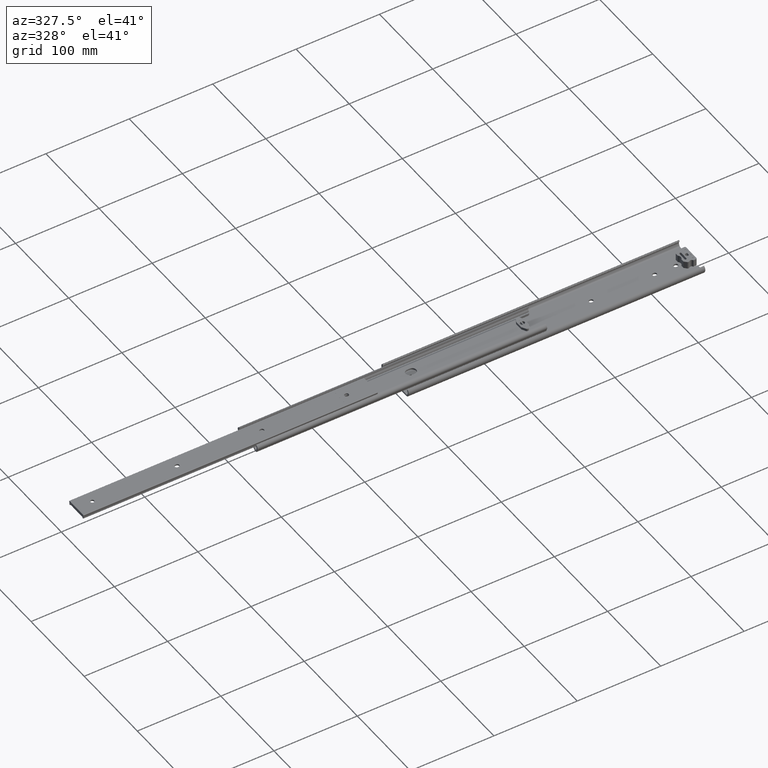
[diagram: clean part render]
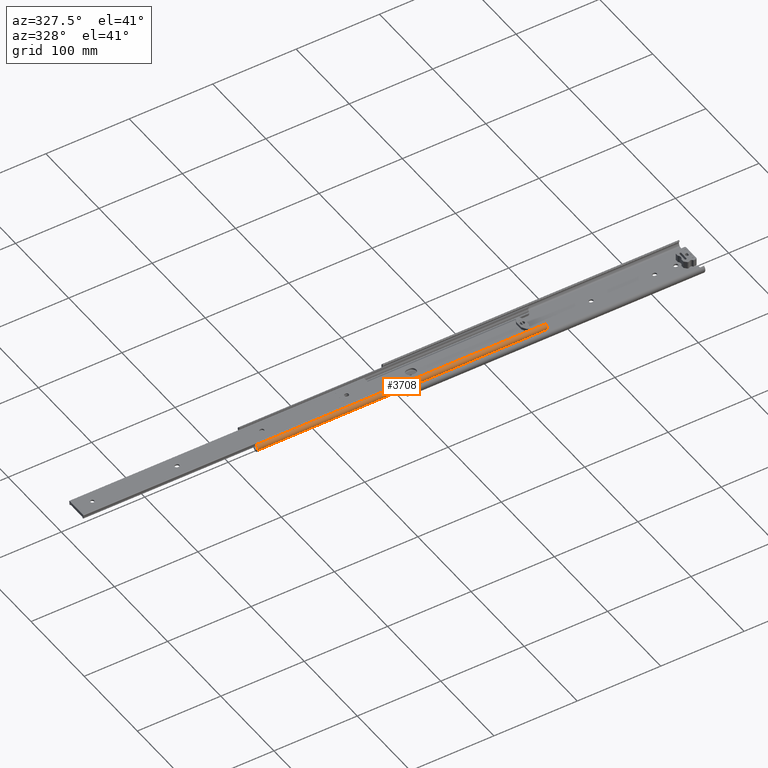
[diagram: same view with one face highlighted and labeled with its STEP entity id]
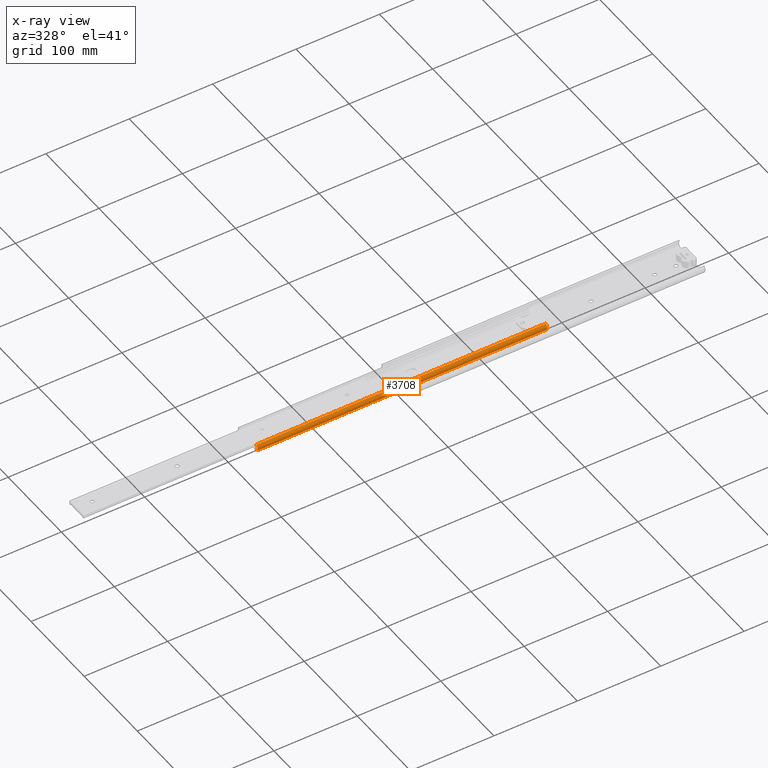
[diagram: x-ray of the same camera — body ghosted, the highlighted face saturated]
A machine part, auxiliary view. The second image highlights one B-rep face of the part: STEP entity #3708.
The next image is the same camera in x-ray: the body ghosted, the highlighted face saturated — about 0% of this face is hidden behind the body in this view.
In plain terms, the highlighted cylindrical surface (edge-blend (fillet) strip) has radius 3.75 mm, axis along (-1, -0, -0).
Its self-contained STEP definition (entity closure, byte-faithful):
#221 = VERTEX_POINT ( 'NONE', #3221 ) ;
#388 = DIRECTION ( 'NONE',  ( -1.000000000000000000, -0.0000000000000000000, -0.0000000000000000000 ) ) ;
#799 = CARTESIAN_POINT ( 'NONE',  ( 0.0000000000000000000, -15.67499133287136100, 6.888855900087450300 ) ) ;
#816 = ORIENTED_EDGE ( 'NONE', *, *, #5684, .T. ) ;
#1045 = VECTOR ( 'NONE', #5338, 1000.000000000000000 ) ;
#1087 = ORIENTED_EDGE ( 'NONE', *, *, #6641, .F. ) ;
#1200 = CYLINDRICAL_SURFACE ( 'NONE', #3257, 3.750005239290455300 ) ;
#1591 = CARTESIAN_POINT ( 'NONE',  ( 347.1000000000000200, -15.67499133287136100, 6.888855900087450300 ) ) ;
#2007 = ORIENTED_EDGE ( 'NONE', *, *, #7745, .F. ) ;
#2219 = DIRECTION ( 'NONE',  ( -1.000000000000000000, -0.0000000000000000000, -0.0000000000000000000 ) ) ;
#2272 = VERTEX_POINT ( 'NONE', #799 ) ;
#2679 = VERTEX_POINT ( 'NONE', #7394 ) ;
#2794 = AXIS2_PLACEMENT_3D ( 'NONE', #6788, #3178, #7411 ) ;
#2860 = VECTOR ( 'NONE', #388, 1000.000000000000000 ) ;
#2889 = EDGE_CURVE ( 'NONE', #3976, #2272, #4468, .T. ) ;
#3003 = FACE_OUTER_BOUND ( 'NONE', #5695, .T. ) ;
#3178 = DIRECTION ( 'NONE',  ( -1.000000000000000000, -0.0000000000000000000, 0.0000000000000000000 ) ) ;
#3221 = CARTESIAN_POINT ( 'NONE',  ( 0.0000000000000000000, -18.12974695031985600, 1.133452684890813300 ) ) ;
#3230 = CIRCLE ( 'NONE', #2794, 3.750005239290455300 ) ;
#3251 = CARTESIAN_POINT ( 'NONE',  ( 0.0000000000000000000, -15.00054234065929900, 3.199999999999998800 ) ) ;
#3257 = AXIS2_PLACEMENT_3D ( 'NONE', #6474, #2219, #3456 ) ;
#3388 = CIRCLE ( 'NONE', #4689, 3.750005239290455300 ) ;
#3456 = DIRECTION ( 'NONE',  ( 0.0000000000000000000, 0.0000000000000000000, 1.000000000000000000 ) ) ;
#3708 = ADVANCED_FACE ( 'NONE', ( #3003 ), #1200, .T. ) ;
#3867 = DIRECTION ( 'NONE',  ( 0.0000000000000000000, 0.0000000000000000000, 1.000000000000000000 ) ) ;
#3910 = CARTESIAN_POINT ( 'NONE',  ( 347.1000000000000200, -15.67499133287136100, 6.888855900087450300 ) ) ;
#3976 = VERTEX_POINT ( 'NONE', #3910 ) ;
#4468 = LINE ( 'NONE', #1591, #2860 ) ;
#4689 = AXIS2_PLACEMENT_3D ( 'NONE', #3251, #7483, #3867 ) ;
#5338 = DIRECTION ( 'NONE',  ( -1.000000000000000000, -0.0000000000000000000, -0.0000000000000000000 ) ) ;
#5684 = EDGE_CURVE ( 'NONE', #2679, #3976, #3230, .T. ) ;
#5695 = EDGE_LOOP ( 'NONE', ( #2007, #1087, #816, #6741 ) ) ;
#5881 = LINE ( 'NONE', #7703, #1045 ) ;
#6474 = CARTESIAN_POINT ( 'NONE',  ( 347.1000000000000200, -15.00054234065929900, 3.199999999999998800 ) ) ;
#6641 = EDGE_CURVE ( 'NONE', #2679, #221, #5881, .T. ) ;
#6741 = ORIENTED_EDGE ( 'NONE', *, *, #2889, .T. ) ;
#6788 = CARTESIAN_POINT ( 'NONE',  ( 347.1000000000000200, -15.00054234065929900, 3.199999999999998800 ) ) ;
#7394 = CARTESIAN_POINT ( 'NONE',  ( 347.1000000000000200, -18.12974695031985600, 1.133452684890813300 ) ) ;
#7411 = DIRECTION ( 'NONE',  ( 0.0000000000000000000, 0.0000000000000000000, 1.000000000000000000 ) ) ;
#7483 = DIRECTION ( 'NONE',  ( -1.000000000000000000, -0.0000000000000000000, 0.0000000000000000000 ) ) ;
#7703 = CARTESIAN_POINT ( 'NONE',  ( 347.1000000000000200, -18.12974695031985600, 1.133452684890813300 ) ) ;
#7745 = EDGE_CURVE ( 'NONE', #221, #2272, #3388, .T. ) ;